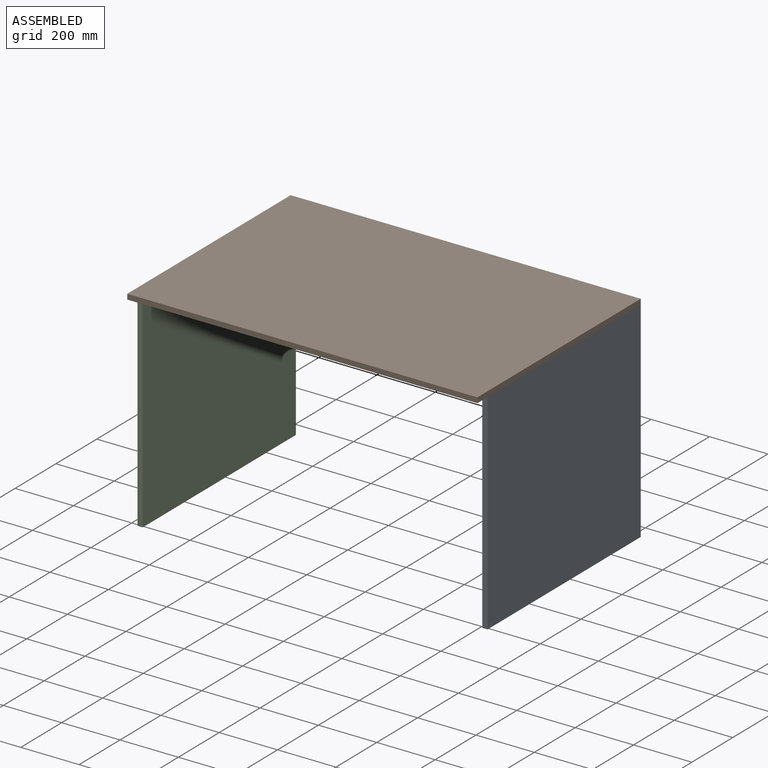
[diagram: assembled view]
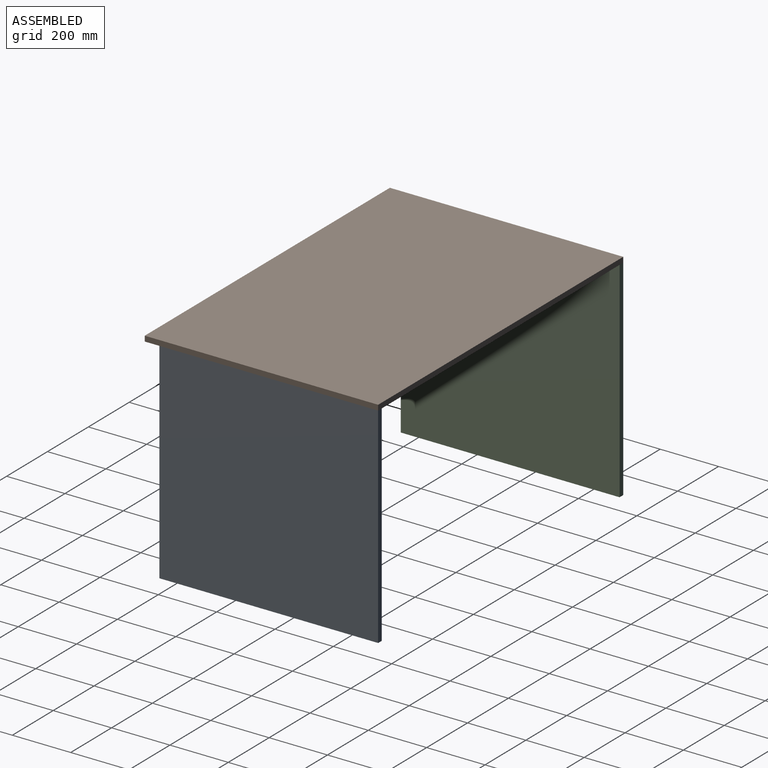
[diagram: assembled view, second angle]
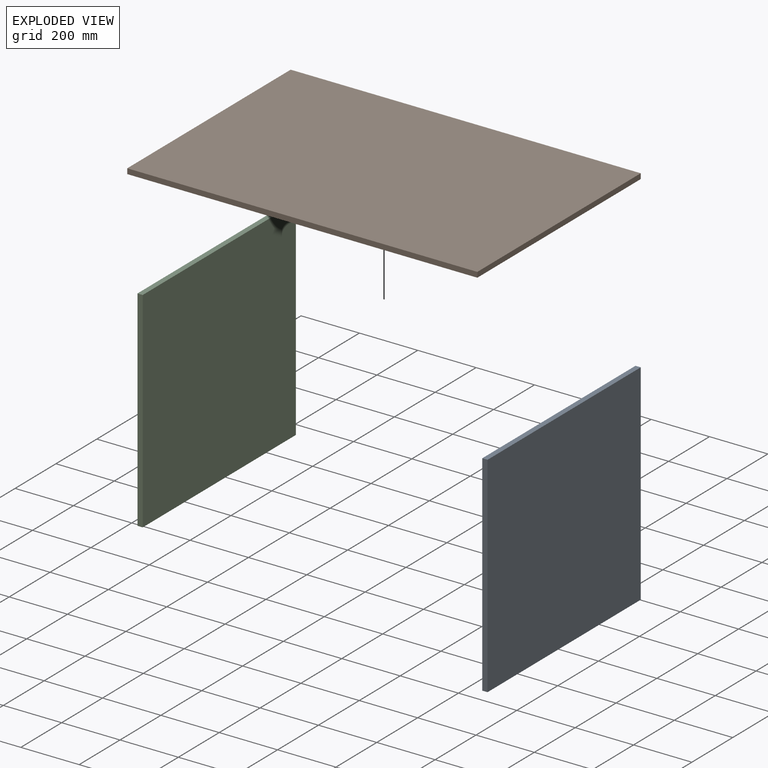
[diagram: exploded view]
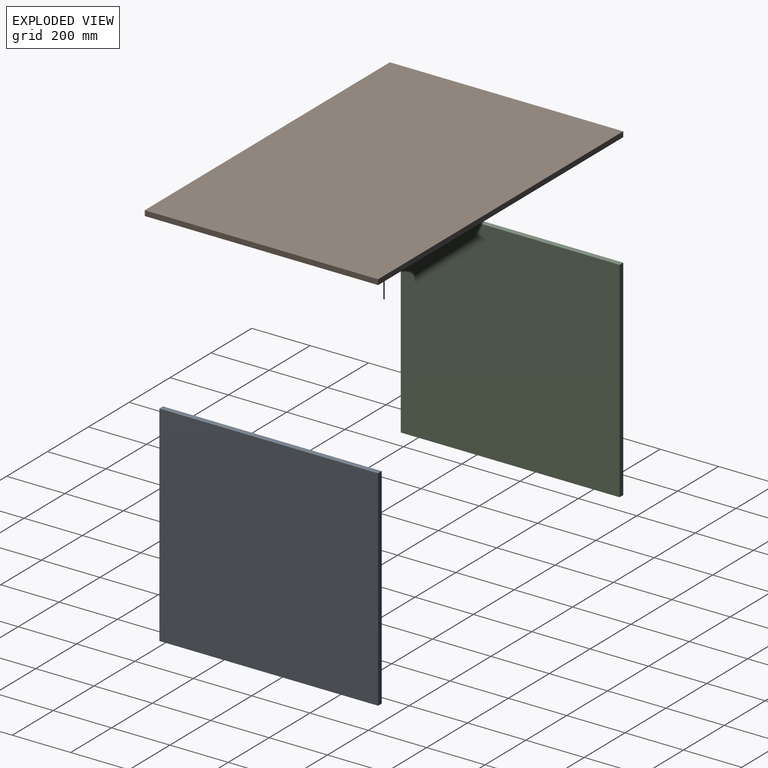
[diagram: exploded view, second angle]
ASSEMBLY  parts=3 mates=2
PART A: 6 faces, bbox 18x750x720 mm
  f0: plane 720x18mm, normal (0,1,0), area 12960mm2, adj f1,f3,f4,f5
  f1: plane 750x720mm, normal (-1,0,0), area 540000mm2, adj f0,f2,f4,f5
  f2: plane 720x18mm, normal (0,-1,0), area 12960mm2, adj f1,f3,f4,f5
  f3: plane 750x720mm, normal (1,0,0), area 540000mm2, adj f0,f2,f4,f5
  f4: plane 750x18mm, normal (0,0,1), area 13500mm2, adj f0,f1,f2,f3
  f5: plane 750x18mm, normal (0,0,-1), area 13500mm2, adj f0,f1,f2,f3
PART B: 6 faces, bbox 1200x800x18 mm
  f0: plane 1200x18mm, normal (0,1,0), area 21600mm2, adj f1,f3,f4,f5
  f1: plane 800x18mm, normal (-1,0,0), area 14400mm2, adj f0,f2,f4,f5
  f2: plane 1200x18mm, normal (0,-1,0), area 21600mm2, adj f1,f3,f4,f5
  f3: plane 800x18mm, normal (1,0,0), area 14400mm2, adj f0,f2,f4,f5
  f4: plane 1200x800mm, normal (0,0,1), area 960000mm2, adj f0,f1,f2,f3
  f5: plane 1200x800mm, normal (0,0,-1), area 960000mm2, adj f0,f1,f2,f3
PART C: same geometry as A
PLACE A t=(241.75,-67.79,-524.79)mm
PLACE B t=(-147.46,-34.27,195.21)mm
PLACE C t=(-940.25,-67.79,-524.79)mm
MATE fastened C.f4 <-> B.f5  axis (0,0,1) through (-906.65,359.1,195.21)mm
MATE fastened A.f4 <-> B.f5  axis (0,0,1) through (293.35,359.1,195.21)mm
